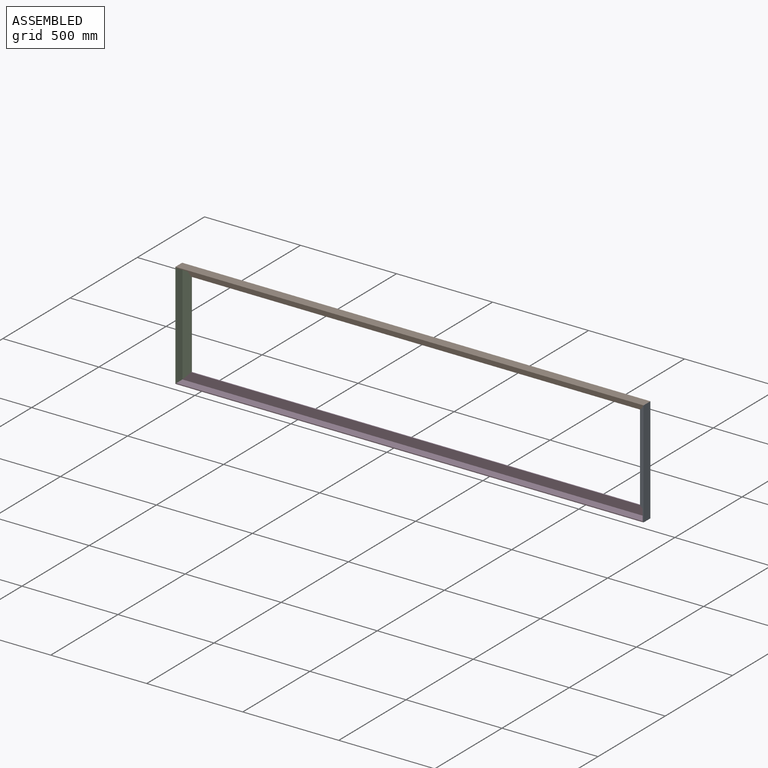
[diagram: assembled view]
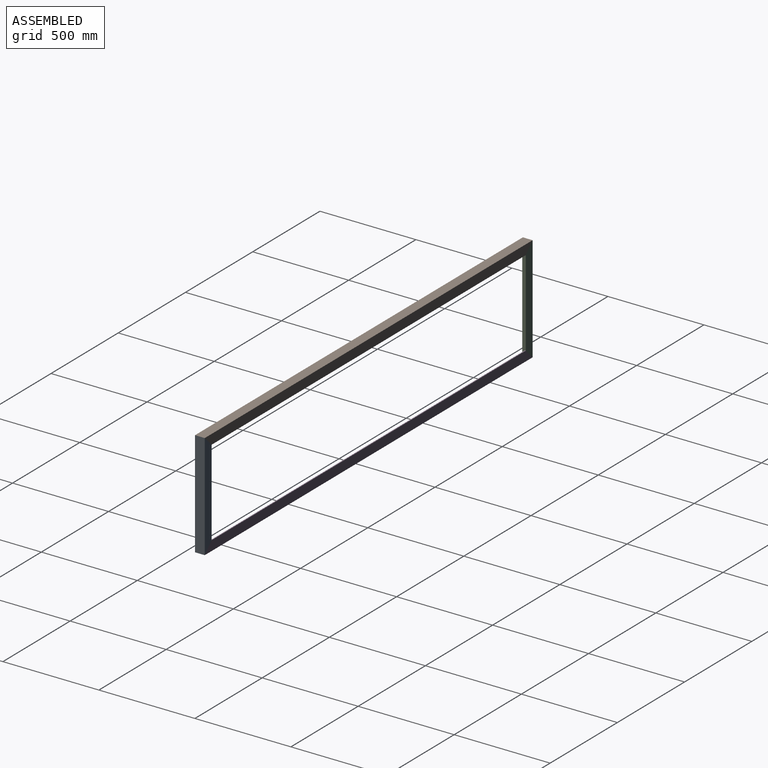
[diagram: assembled view, second angle]
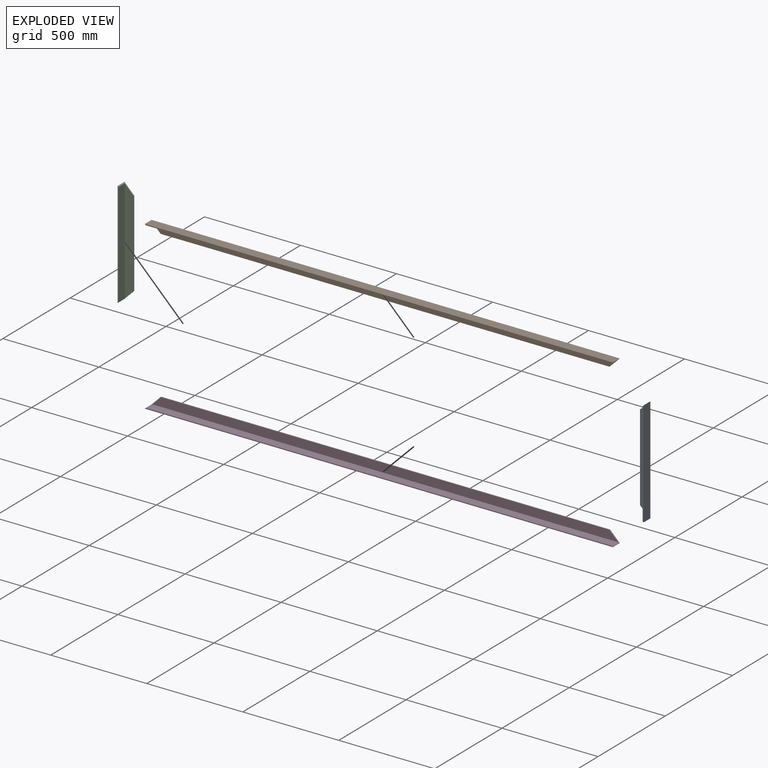
[diagram: exploded view]
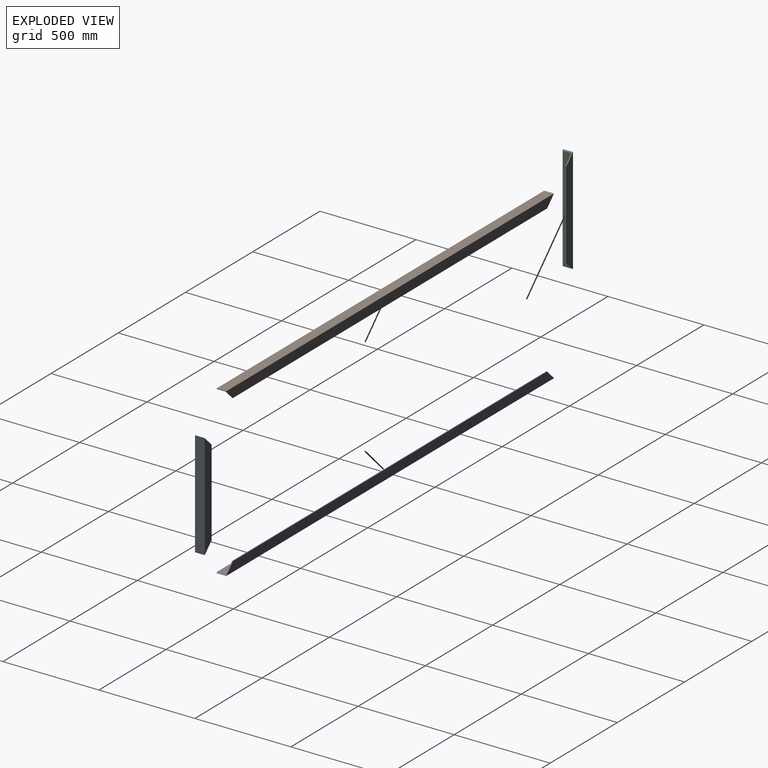
[diagram: exploded view, second angle]
ASSEMBLY  parts=4 mates=3
PART A: 8 faces, bbox 50.8x50.8x551.2 mm
  f0: plane 551.18x50.8mm, normal (0,-1,0), area 25419.3mm2, adj f1,f5,f6,f7
  f1: plane 449.58x4.76mm, normal (1,0,0), area 2141.1mm2, adj f0,f2,f6,f7
  f2: plane 541.66x46.04mm, normal (0,1,0), area 22817mm2, adj f1,f3,f6,f7
  f3: plane 541.66x46.04mm, normal (1,0,0), area 24936.4mm2, adj f2,f4,f6,f7
  f4: plane 551.18x4.76mm, normal (0,1,0), area 2602.3mm2, adj f3,f5,f6,f7
  f5: plane 551.18x50.8mm, normal (-1,0,0), area 27999.9mm2, adj f0,f4,f6,f7
  f6: plane 50.8x50.8mm, normal (0.71,0,0.71), area 652.2mm2, adj f0,f1,f2,f3,f4,f5
  f7: plane 50.8x50.8mm, normal (0.71,0,-0.71), area 652.2mm2, adj f0,f1,f2,f3,f4,f5
PART B: 8 faces, bbox 50.8x50.8x2438.4 mm
  f0: plane 2438.4x50.8mm, normal (0,-1,0), area 121290.1mm2, adj f1,f5,f6,f7
  f1: plane 2336.8x4.76mm, normal (1,0,0), area 11129mm2, adj f0,f2,f6,f7
  f2: plane 2428.88x46.04mm, normal (0,1,0), area 109699.9mm2, adj f1,f3,f6,f7
  f3: plane 2428.88x46.04mm, normal (1,0,0), area 111819.3mm2, adj f2,f4,f6,f7
  f4: plane 2438.4x4.76mm, normal (0,1,0), area 11590.2mm2, adj f3,f5,f6,f7
  f5: plane 2438.4x50.8mm, normal (-1,0,0), area 123870.7mm2, adj f0,f4,f6,f7
  f6: plane 50.8x50.8mm, normal (0.71,0,0.71), area 652.2mm2, adj f0,f1,f2,f3,f4,f5
  f7: plane 50.8x50.8mm, normal (0.71,0,-0.71), area 652.2mm2, adj f0,f1,f2,f3,f4,f5
PART C: same geometry as A
PART D: same geometry as B
PLACE A rot(axis=(0,0,-1),180deg) t=(1219.2,4.76,-523.55)mm
PLACE B rot(axis=(-0.71,0,0.71),180deg) t=(1219.2,4.76,27.63)mm
PLACE C rot(axis=(-1,0,0),180deg) t=(-1219.2,4.76,27.63)mm
PLACE D rot(axis=(-0.71,0,-0.71),180deg) t=(-1219.2,4.76,-523.55)mm
MATE fastened D.f6 <-> A.f7  axis (0.71,0,0.71) through (1219.2,4.76,-523.55)mm
MATE fastened C.f6 <-> D.f7  axis (0.71,0,-0.71) through (-1219.2,4.76,-523.55)mm
MATE fastened A.f6 <-> B.f7  axis (-0.71,0,0.71) through (1219.2,4.76,27.63)mm
